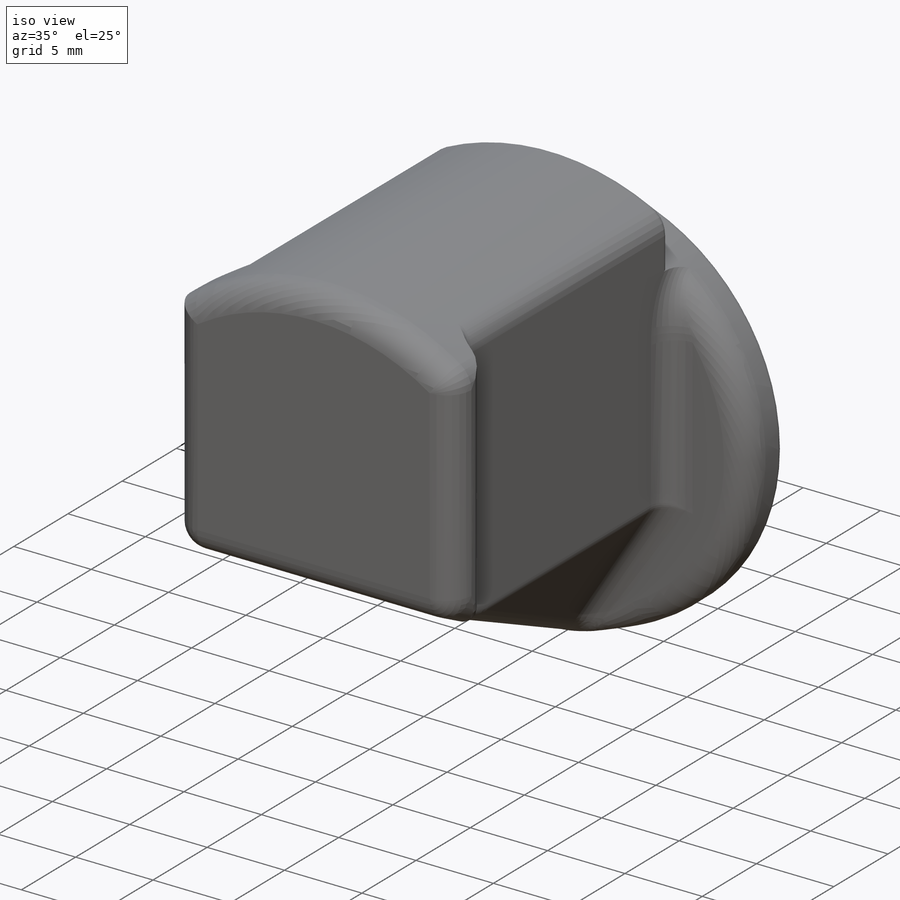
[diagram: iso view]
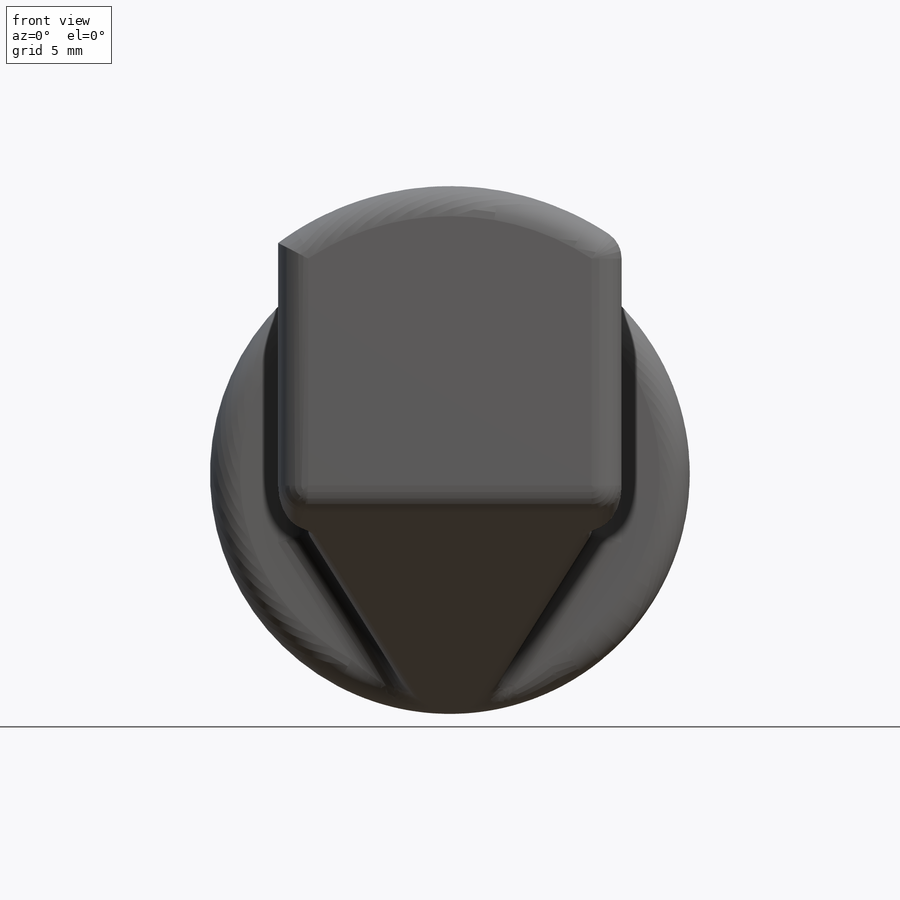
[diagram: front view]
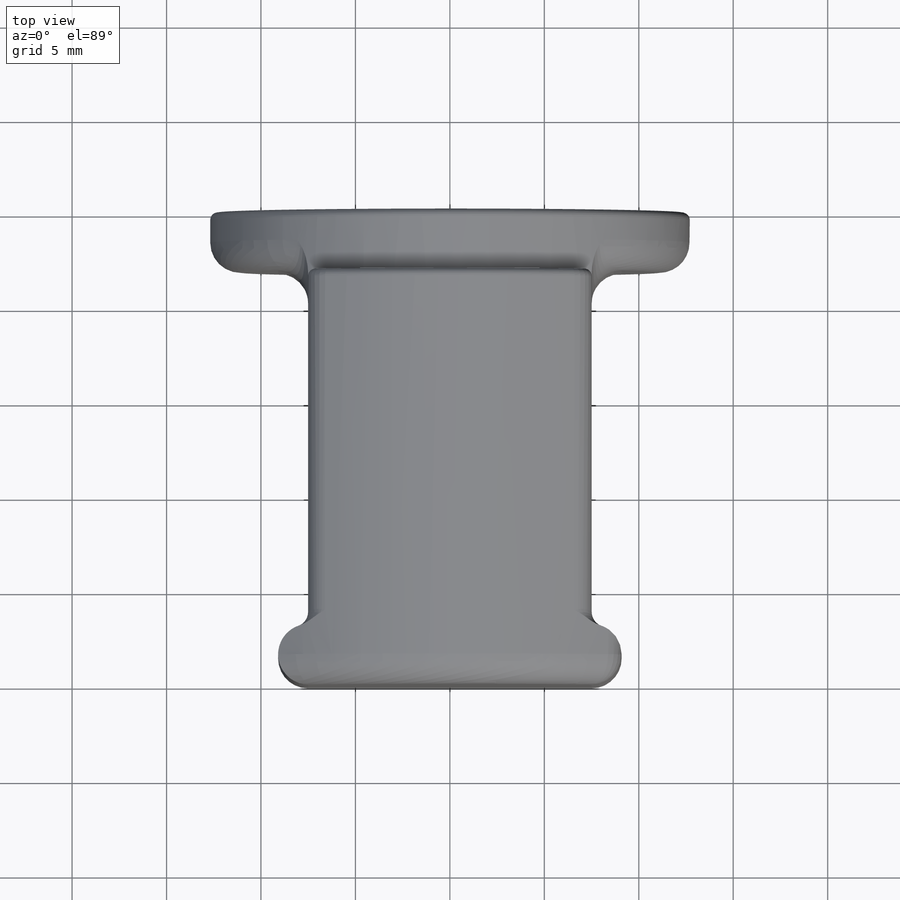
[diagram: top view]
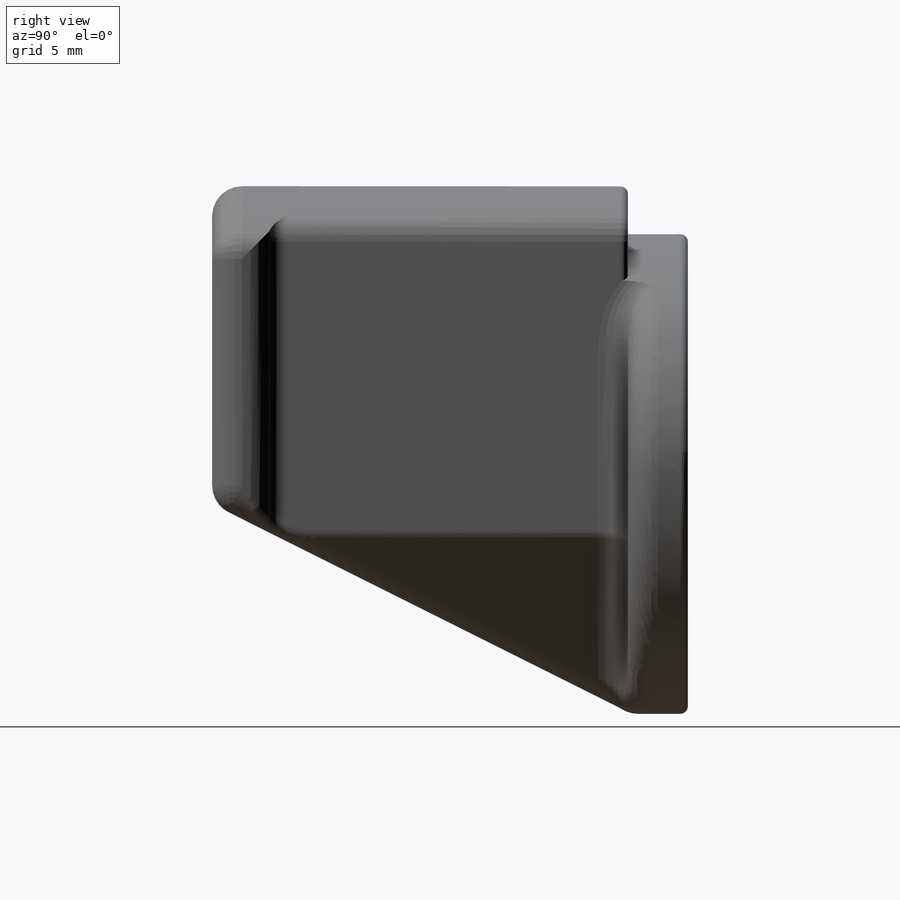
[diagram: right view]
SOLIDWORKS PART (.sldprt)
format: sldprt  version: not decoded by parser v0  size: 537,088 bytes
history: native  units: mm
features: fillet x12, sketch x5, extrude x4, material x1, cut_extrude x1 (+16 scaffold rows collapsed)
feature tree (39):
  scaffold x16  (default folders/planes/origin — collapsed)
  material  "Material <not specified>"
  sketch  "Sketch1"  dims[D1=25.4mm]
  extrude  "Extrude1"  Depth=3.175mm
  sketch  "Sketch4"  dims[D1=2.54mm D2=7.5057mm D3=7.5057mm D4=9.525mm]
  extrude  "Extrude3"  Depth=25.1841mm
  sketch  "Sketch5"  dims[D1=9.525mm D2=9.525mm D3=1.5875mm D4=1.5875mm]
  extrude  "Extrude4"  Depth=3.175mm
  sketch  "Sketch6"  dims[D1=3.175mm]
  extrude  "Extrude5"  [1 undecoded]
  sketch  "Sketch7"
  cut_extrude  "Extrude6"  [1 undecoded]
  fillet  "Fillet2"  Radius=1.5875mm
  fillet  "Fillet4"  Radius=1.5875mm
  fillet  "Fillet6"  Radius=0.396875mm
  fillet  "Fillet7"  Radius=0.396875mm
  fillet  "Fillet11"  Radius=1.5875mm
  fillet  "Fillet14"  Radius=1.5875mm
  fillet  "Fillet15"  Radius=1.5875mm
  fillet  "Fillet17"  Radius=1.5875mm
  fillet  "Fillet18"  Radius=1.5875mm
  fillet  "Fillet19"  Radius=0.79375mm
  fillet  "Fillet20"  Radius=0.79375mm
  fillet  "Fillet21"  Radius=0.437134mm
decode coverage: 19 of 22 modeling features carry decoded parameters
note: 2 parameter values undecoded
note: suppression state not decoded; provenance and decode notes live in map.json
